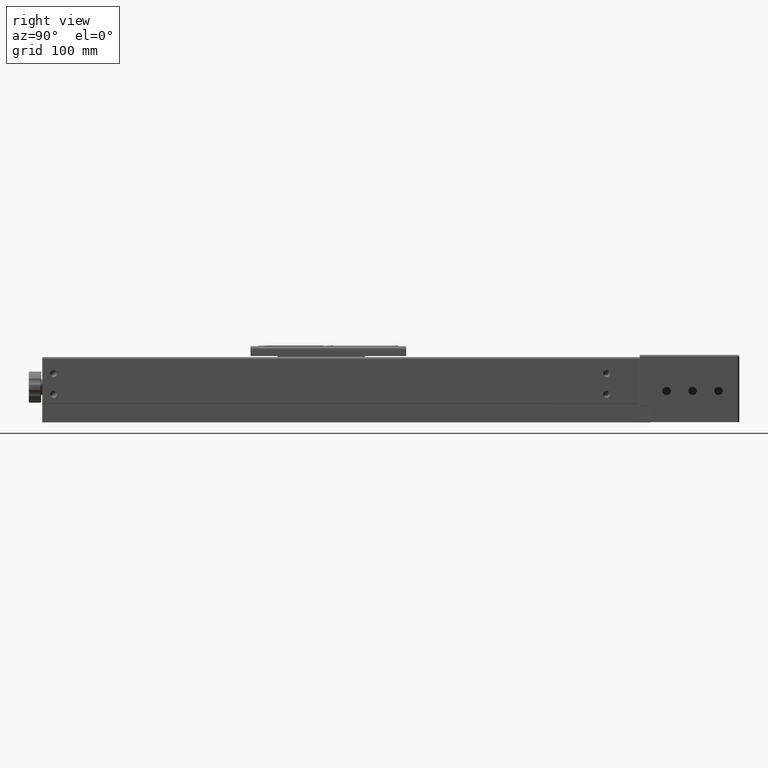
[diagram: clean part render]
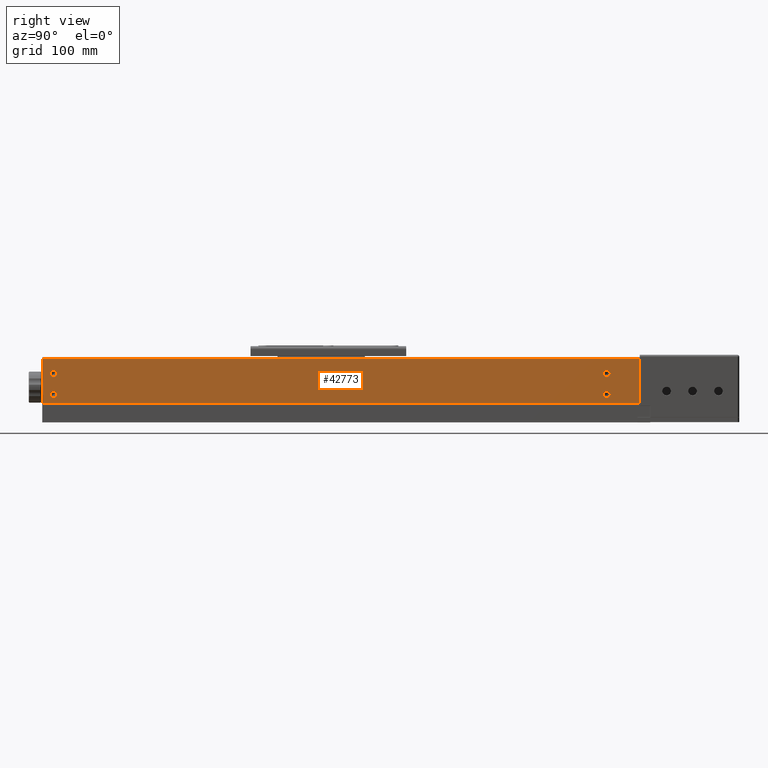
[diagram: same view with one face highlighted and labeled with its STEP entity id]
A machine part, right view. The second image highlights one B-rep face of the part: STEP entity #42773.
In plain terms, the highlighted planar face has unit normal (1, 0, -0).
Its self-contained STEP definition (entity closure, byte-faithful):
#1004 = EDGE_CURVE ( 'NONE', #68943, #66864, #59188, .T. ) ;
#3089 = VERTEX_POINT ( 'NONE', #76765 ) ;
#3456 = DIRECTION ( 'NONE',  ( -2.581433744013125775E-16, 1.000000000000000000, 0.000000000000000000 ) ) ;
#3592 = VERTEX_POINT ( 'NONE', #26089 ) ;
#3630 = CARTESIAN_POINT ( 'NONE',  ( 4.414567697118870093, 466.0311902418279715, -3.753349746444529789 ) ) ;
#3780 = CARTESIAN_POINT ( 'NONE',  ( 4.414567697118885192, 437.5911902418280306, 25.04665025355549801 ) ) ;
#4322 = CARTESIAN_POINT ( 'NONE',  ( 4.414567697119064604, -98.96880975817198589, 25.04665025355554775 ) ) ;
#5193 = CARTESIAN_POINT ( 'NONE',  ( 4.414567697119060163, -95.60880975817200067, 5.046650253555560184 ) ) ;
#5318 = VECTOR ( 'NONE', #10531, 1000.000000000000000 ) ;
#6564 = DIRECTION ( 'NONE',  ( -2.581433744013125775E-16, 1.000000000000000000, 0.000000000000000000 ) ) ;
#7764 = ORIENTED_EDGE ( 'NONE', *, *, #56692, .F. ) ;
#8298 = CIRCLE ( 'NONE', #54251, 3.360000000000002096 ) ;
#8323 = EDGE_CURVE ( 'NONE', #78337, #63290, #63214, .T. ) ;
#8674 = EDGE_LOOP ( 'NONE', ( #15029, #78529 ) ) ;
#9055 = CIRCLE ( 'NONE', #37979, 3.360000000000002096 ) ;
#9098 = CIRCLE ( 'NONE', #16953, 3.359999999999974118 ) ;
#9225 = CARTESIAN_POINT ( 'NONE',  ( 4.414567697118885192, 434.2311902418280170, 5.046650253555498900 ) ) ;
#9618 = CARTESIAN_POINT ( 'NONE',  ( 4.414567697118885192, 434.2311902418280170, 5.046650253555498900 ) ) ;
#10531 = DIRECTION ( 'NONE',  ( -1.765627240695959824E-16, 1.859811179062404832E-17, -1.000000000000000000 ) ) ;
#10819 = EDGE_CURVE ( 'NONE', #40764, #72018, #60209, .T. ) ;
#10835 = DIRECTION ( 'NONE',  ( 1.000000000000000000, 2.581433744013125282E-16, -1.765627240695959824E-16 ) ) ;
#11245 = DIRECTION ( 'NONE',  ( -2.581433744013125775E-16, 1.000000000000000000, 0.000000000000000000 ) ) ;
#13178 = AXIS2_PLACEMENT_3D ( 'NONE', #4322, #42163, #54501 ) ;
#13278 = CARTESIAN_POINT ( 'NONE',  ( 4.414567697118879863, 466.0311902418279715, 41.04665025355549801 ) ) ;
#15029 = ORIENTED_EDGE ( 'NONE', *, *, #10819, .F. ) ;
#15304 = AXIS2_PLACEMENT_3D ( 'NONE', #66898, #42615, #42211 ) ;
#16045 = DIRECTION ( 'NONE',  ( 1.000000000000000000, 2.581433744013105067E-16, -1.765627240695959824E-16 ) ) ;
#16188 = EDGE_CURVE ( 'NONE', #28640, #3089, #8298, .T. ) ;
#16593 = PLANE ( 'NONE',  #18879 ) ;
#16953 = AXIS2_PLACEMENT_3D ( 'NONE', #9618, #10835, #11245 ) ;
#17132 = ORIENTED_EDGE ( 'NONE', *, *, #8323, .F. ) ;
#17822 = DIRECTION ( 'NONE',  ( 1.765627240695959824E-16, 1.038665681241111892E-16, 1.000000000000000000 ) ) ;
#18879 = AXIS2_PLACEMENT_3D ( 'NONE', #66402, #72990, #29793 ) ;
#18925 = DIRECTION ( 'NONE',  ( 1.000000000000000000, 2.581433744013125282E-16, -1.765627240695959824E-16 ) ) ;
#19053 = LINE ( 'NONE', #13278, #64049 ) ;
#19137 = EDGE_CURVE ( 'NONE', #66331, #68943, #56891, .T. ) ;
#20146 = CARTESIAN_POINT ( 'NONE',  ( 4.414567697118889633, 434.2311902418280170, 25.04665025355549801 ) ) ;
#21161 = AXIS2_PLACEMENT_3D ( 'NONE', #20146, #18925, #6564 ) ;
#21865 = CARTESIAN_POINT ( 'NONE',  ( 4.414567697119064604, -95.60880975817200067, 25.04665025355554775 ) ) ;
#22319 = EDGE_CURVE ( 'NONE', #63290, #78337, #50776, .T. ) ;
#22565 = DIRECTION ( 'NONE',  ( -3.330304365079189903E-16, 1.000000000000000000, -1.038665681241111892E-16 ) ) ;
#22799 = EDGE_CURVE ( 'NONE', #66864, #60279, #19053, .T. ) ;
#22800 = FACE_BOUND ( 'NONE', #25692, .T. ) ;
#22990 = VECTOR ( 'NONE', #22565, 1000.000000000000000 ) ;
#23615 = FACE_BOUND ( 'NONE', #8674, .T. ) ;
#25692 = EDGE_LOOP ( 'NONE', ( #36772, #17132 ) ) ;
#26089 = CARTESIAN_POINT ( 'NONE',  ( 4.414567697119064604, -102.3288097581719853, 25.04665025355554775 ) ) ;
#26489 = ORIENTED_EDGE ( 'NONE', *, *, #22799, .T. ) ;
#27038 = CARTESIAN_POINT ( 'NONE',  ( 4.414567697119069933, -109.9688097581720001, 39.04665025355554775 ) ) ;
#27788 = DIRECTION ( 'NONE',  ( 1.000000000000000000, 2.581433744013125282E-16, -1.765627240695959824E-16 ) ) ;
#28640 = VERTEX_POINT ( 'NONE', #5193 ) ;
#29005 = ORIENTED_EDGE ( 'NONE', *, *, #76422, .F. ) ;
#29793 = DIRECTION ( 'NONE',  ( -3.330304365079189903E-16, 1.000000000000000000, 0.000000000000000000 ) ) ;
#30607 = CARTESIAN_POINT ( 'NONE',  ( 4.414567697118885192, 430.8711902418280033, 5.046650253555498900 ) ) ;
#31671 = DIRECTION ( 'NONE',  ( 1.000000000000000000, 2.581433744013105067E-16, -1.765627240695959824E-16 ) ) ;
#34604 = DIRECTION ( 'NONE',  ( -2.581433744013104081E-16, 1.000000000000000000, 0.000000000000000000 ) ) ;
#36772 = ORIENTED_EDGE ( 'NONE', *, *, #22319, .F. ) ;
#36824 = ORIENTED_EDGE ( 'NONE', *, *, #1004, .T. ) ;
#37472 = EDGE_CURVE ( 'NONE', #38547, #3592, #9055, .T. ) ;
#37979 = AXIS2_PLACEMENT_3D ( 'NONE', #50982, #31671, #38649 ) ;
#38547 = VERTEX_POINT ( 'NONE', #21865 ) ;
#38649 = DIRECTION ( 'NONE',  ( -2.581433744013104081E-16, 1.000000000000000000, 0.000000000000000000 ) ) ;
#40764 = VERTEX_POINT ( 'NONE', #55038 ) ;
#41561 = ORIENTED_EDGE ( 'NONE', *, *, #37472, .F. ) ;
#42163 = DIRECTION ( 'NONE',  ( 1.000000000000000000, 2.581433744013105067E-16, -1.765627240695959824E-16 ) ) ;
#42211 = DIRECTION ( 'NONE',  ( -2.581433744013125775E-16, 1.000000000000000000, 0.000000000000000000 ) ) ;
#42283 = EDGE_LOOP ( 'NONE', ( #59707, #7764 ) ) ;
#42352 = VECTOR ( 'NONE', #52094, 1000.000000000000000 ) ;
#42615 = DIRECTION ( 'NONE',  ( 1.000000000000000000, 2.581433744013125282E-16, -1.765627240695959824E-16 ) ) ;
#42773 = ADVANCED_FACE ( 'NONE', ( #78369, #54035, #22800, #23615, #79598 ), #16593, .T. ) ;
#44515 = CARTESIAN_POINT ( 'NONE',  ( 4.414567697118889633, 430.8711902418280033, 25.04665025355549801 ) ) ;
#44721 = CIRCLE ( 'NONE', #13178, 3.360000000000002096 ) ;
#46669 = CARTESIAN_POINT ( 'NONE',  ( 4.414567697118879863, 466.0311902418279715, 39.04665025355549801 ) ) ;
#49321 = CIRCLE ( 'NONE', #55855, 3.360000000000002096 ) ;
#50776 = CIRCLE ( 'NONE', #15304, 3.359999999999974118 ) ;
#50982 = CARTESIAN_POINT ( 'NONE',  ( 4.414567697119064604, -98.96880975817198589, 25.04665025355554775 ) ) ;
#51272 = CARTESIAN_POINT ( 'NONE',  ( 4.414567697118870093, 466.0311902418279715, -3.753349746444515134 ) ) ;
#52094 = DIRECTION ( 'NONE',  ( 3.330304365079189903E-16, -1.000000000000000000, 1.038665681241111892E-16 ) ) ;
#52208 = ORIENTED_EDGE ( 'NONE', *, *, #78092, .T. ) ;
#54035 = FACE_BOUND ( 'NONE', #77097, .T. ) ;
#54251 = AXIS2_PLACEMENT_3D ( 'NONE', #79435, #16045, #65455 ) ;
#54501 = DIRECTION ( 'NONE',  ( -2.581433744013104081E-16, 1.000000000000000000, 0.000000000000000000 ) ) ;
#54756 = ORIENTED_EDGE ( 'NONE', *, *, #19137, .T. ) ;
#55038 = CARTESIAN_POINT ( 'NONE',  ( 4.414567697118885192, 437.5911902418280306, 5.046650253555498900 ) ) ;
#55855 = AXIS2_PLACEMENT_3D ( 'NONE', #65870, #59687, #34604 ) ;
#56075 = CARTESIAN_POINT ( 'NONE',  ( 4.414567697119064604, -109.7688097581719973, -3.953349746444444701 ) ) ;
#56692 = EDGE_CURVE ( 'NONE', #3089, #28640, #49321, .T. ) ;
#56891 = LINE ( 'NONE', #56075, #5318 ) ;
#59188 = LINE ( 'NONE', #3630, #22990 ) ;
#59687 = DIRECTION ( 'NONE',  ( 1.000000000000000000, 2.581433744013105067E-16, -1.765627240695959824E-16 ) ) ;
#59707 = ORIENTED_EDGE ( 'NONE', *, *, #16188, .F. ) ;
#60209 = CIRCLE ( 'NONE', #81294, 3.359999999999974118 ) ;
#60279 = VERTEX_POINT ( 'NONE', #46669 ) ;
#61768 = EDGE_CURVE ( 'NONE', #72018, #40764, #9098, .T. ) ;
#63214 = CIRCLE ( 'NONE', #21161, 3.359999999999974118 ) ;
#63290 = VERTEX_POINT ( 'NONE', #3780 ) ;
#64049 = VECTOR ( 'NONE', #17822, 1000.000000000000000 ) ;
#64530 = CARTESIAN_POINT ( 'NONE',  ( 4.414567697119064604, -109.7688097581719973, -3.753349746444465396 ) ) ;
#65455 = DIRECTION ( 'NONE',  ( -2.581433744013104081E-16, 1.000000000000000000, 0.000000000000000000 ) ) ;
#65870 = CARTESIAN_POINT ( 'NONE',  ( 4.414567697119064604, -98.96880975817198589, 5.046650253555560184 ) ) ;
#66064 = LINE ( 'NONE', #27038, #42352 ) ;
#66331 = VERTEX_POINT ( 'NONE', #80349 ) ;
#66402 = CARTESIAN_POINT ( 'NONE',  ( 4.414567697119069933, -109.9688097581720001, 41.04665025355554775 ) ) ;
#66864 = VERTEX_POINT ( 'NONE', #51272 ) ;
#66898 = CARTESIAN_POINT ( 'NONE',  ( 4.414567697118889633, 434.2311902418280170, 25.04665025355549801 ) ) ;
#68610 = EDGE_LOOP ( 'NONE', ( #54756, #36824, #26489, #52208 ) ) ;
#68943 = VERTEX_POINT ( 'NONE', #64530 ) ;
#72018 = VERTEX_POINT ( 'NONE', #30607 ) ;
#72990 = DIRECTION ( 'NONE',  ( 1.000000000000000000, 3.330304365079189903E-16, -1.765627240695959824E-16 ) ) ;
#76422 = EDGE_CURVE ( 'NONE', #3592, #38547, #44721, .T. ) ;
#76765 = CARTESIAN_POINT ( 'NONE',  ( 4.414567697119064604, -102.3288097581719853, 5.046650253555560184 ) ) ;
#77097 = EDGE_LOOP ( 'NONE', ( #41561, #29005 ) ) ;
#78092 = EDGE_CURVE ( 'NONE', #60279, #66331, #66064, .T. ) ;
#78337 = VERTEX_POINT ( 'NONE', #44515 ) ;
#78369 = FACE_BOUND ( 'NONE', #42283, .T. ) ;
#78529 = ORIENTED_EDGE ( 'NONE', *, *, #61768, .F. ) ;
#79435 = CARTESIAN_POINT ( 'NONE',  ( 4.414567697119064604, -98.96880975817198589, 5.046650253555560184 ) ) ;
#79598 = FACE_OUTER_BOUND ( 'NONE', #68610, .T. ) ;
#80349 = CARTESIAN_POINT ( 'NONE',  ( 4.414567697119069933, -109.7688097581719973, 39.04665025355554775 ) ) ;
#81294 = AXIS2_PLACEMENT_3D ( 'NONE', #9225, #27788, #3456 ) ;